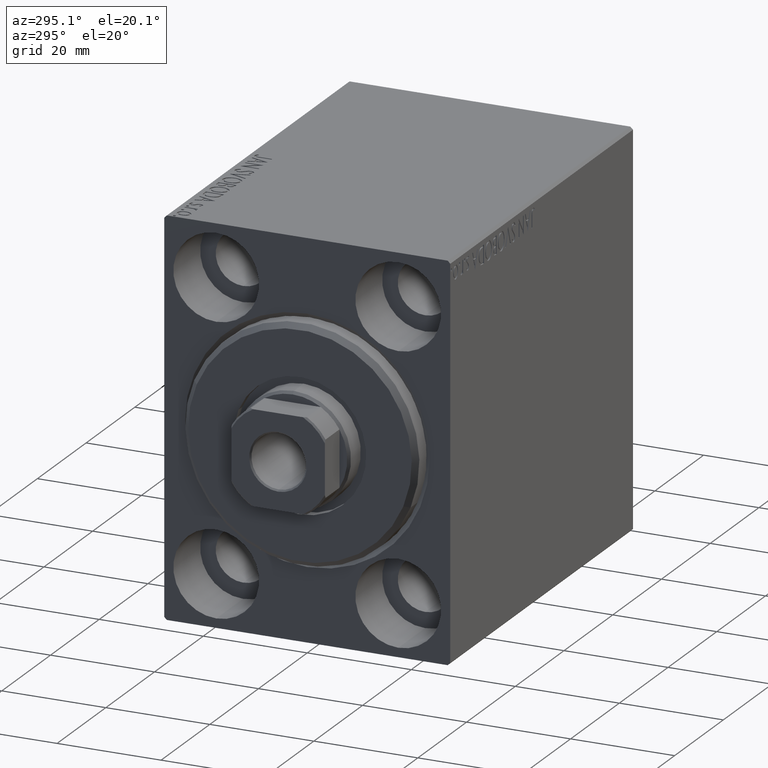
[diagram: clean part render]
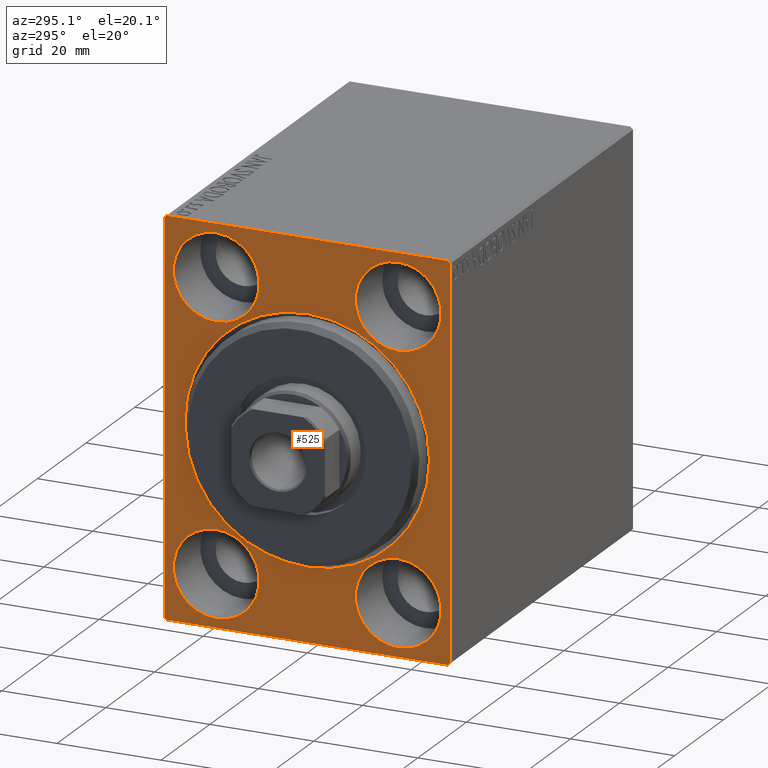
[diagram: same view with one face highlighted and labeled with its STEP entity id]
A machine part, auxiliary view. The second image highlights one B-rep face of the part: STEP entity #525.
In plain terms, the highlighted planar face has unit normal (1, 0, 0).
Its self-contained STEP definition (entity closure, byte-faithful):
#226 = EDGE_CURVE ( 'NONE', #27719, #16628, #3617, .T. ) ;
#371 = CIRCLE ( 'NONE', #6021, 8.250000000000000000 ) ;
#469 = FACE_BOUND ( 'NONE', #32838, .T. ) ;
#502 = VERTEX_POINT ( 'NONE', #37054 ) ;
#525 = ADVANCED_FACE ( 'NONE', ( #3784, #469, #40783, #10596, #37480, #7297 ), #34174, .F. ) ;
#1341 = ORIENTED_EDGE ( 'NONE', *, *, #6270, .F. ) ;
#1565 = CIRCLE ( 'NONE', #29724, 23.50000000000000355 ) ;
#1594 = DIRECTION ( 'NONE',  ( -1.000000000000000000, 0.000000000000000000, 0.000000000000000000 ) ) ;
#1922 = AXIS2_PLACEMENT_3D ( 'NONE', #38615, #1594, #15032 ) ;
#2478 = EDGE_CURVE ( 'NONE', #19018, #9089, #13507, .T. ) ;
#2744 = CARTESIAN_POINT ( 'NONE',  ( 0.000000000000000000, 17.50000000000000355, 27.49999999999999645 ) ) ;
#2854 = CARTESIAN_POINT ( 'NONE',  ( 0.000000000000000000, 0.000000000000000000, 0.000000000000000000 ) ) ;
#2866 = CARTESIAN_POINT ( 'NONE',  ( 0.000000000000000000, 17.49999999999999645, -35.75000000000000711 ) ) ;
#3264 = AXIS2_PLACEMENT_3D ( 'NONE', #21214, #35114, #28713 ) ;
#3306 = EDGE_CURVE ( 'NONE', #34982, #42730, #42655, .T. ) ;
#3389 = AXIS2_PLACEMENT_3D ( 'NONE', #2744, #35794, #5617 ) ;
#3617 = LINE ( 'NONE', #30490, #42589 ) ;
#3784 = FACE_BOUND ( 'NONE', #18952, .T. ) ;
#3997 = CARTESIAN_POINT ( 'NONE',  ( 0.000000000000000000, 0.000000000000000000, 0.000000000000000000 ) ) ;
#4283 = CARTESIAN_POINT ( 'NONE',  ( 0.000000000000000000, 0.000000000000000000, 0.000000000000000000 ) ) ;
#4296 = CARTESIAN_POINT ( 'NONE',  ( 0.000000000000000000, -17.50000000000000355, -27.50000000000000355 ) ) ;
#4326 = EDGE_CURVE ( 'NONE', #41367, #23080, #39298, .T. ) ;
#5316 = ORIENTED_EDGE ( 'NONE', *, *, #16441, .F. ) ;
#5431 = CARTESIAN_POINT ( 'NONE',  ( 0.000000000000000000, -17.49999999999999645, 27.49999999999999645 ) ) ;
#5617 = DIRECTION ( 'NONE',  ( 0.000000000000000000, 0.000000000000000000, 1.000000000000000000 ) ) ;
#5959 = CIRCLE ( 'NONE', #41820, 8.250000000000000000 ) ;
#5968 = VERTEX_POINT ( 'NONE', #9496 ) ;
#6021 = AXIS2_PLACEMENT_3D ( 'NONE', #29639, #12902, #16419 ) ;
#6270 = EDGE_CURVE ( 'NONE', #31675, #34531, #24395, .T. ) ;
#6658 = EDGE_CURVE ( 'NONE', #31455, #31411, #29383, .T. ) ;
#7144 = EDGE_CURVE ( 'NONE', #41367, #9089, #13843, .T. ) ;
#7297 = FACE_OUTER_BOUND ( 'NONE', #32642, .T. ) ;
#7347 = DIRECTION ( 'NONE',  ( -0.000000000000000000, 0.7071067811865474617, 0.7071067811865474617 ) ) ;
#7601 = DIRECTION ( 'NONE',  ( -1.000000000000000000, 0.000000000000000000, 0.000000000000000000 ) ) ;
#8891 = EDGE_CURVE ( 'NONE', #31411, #31455, #22362, .T. ) ;
#9089 = VERTEX_POINT ( 'NONE', #40075 ) ;
#9490 = EDGE_LOOP ( 'NONE', ( #12504, #21828 ) ) ;
#9496 = CARTESIAN_POINT ( 'NONE',  ( 0.000000000000000000, 2.877919977996280715E-15, -23.50000000000000355 ) ) ;
#9901 = VECTOR ( 'NONE', #12858, 1000.000000000000000 ) ;
#9936 = CIRCLE ( 'NONE', #40196, 23.50000000000000355 ) ;
#10001 = AXIS2_PLACEMENT_3D ( 'NONE', #28166, #13869, #27311 ) ;
#10066 = VERTEX_POINT ( 'NONE', #10159 ) ;
#10159 = CARTESIAN_POINT ( 'NONE',  ( 0.000000000000000000, -27.50000000000000355, -37.00000000000000000 ) ) ;
#10518 = CARTESIAN_POINT ( 'NONE',  ( 0.000000000000000000, -27.00000000000000355, -37.50000000000000000 ) ) ;
#10596 = FACE_BOUND ( 'NONE', #9490, .T. ) ;
#11388 = CIRCLE ( 'NONE', #19104, 8.249999999999992895 ) ;
#11650 = VECTOR ( 'NONE', #40380, 1000.000000000000000 ) ;
#11775 = CARTESIAN_POINT ( 'NONE',  ( 0.000000000000000000, -27.00000000000001776, 37.50000000000000000 ) ) ;
#12146 = CIRCLE ( 'NONE', #10001, 8.250000000000000000 ) ;
#12450 = CARTESIAN_POINT ( 'NONE',  ( 0.000000000000000000, 27.00000000000001066, 37.50000000000000711 ) ) ;
#12504 = ORIENTED_EDGE ( 'NONE', *, *, #8891, .F. ) ;
#12695 = LINE ( 'NONE', #16212, #32306 ) ;
#12858 = DIRECTION ( 'NONE',  ( 0.000000000000000000, 0.000000000000000000, -1.000000000000000000 ) ) ;
#12902 = DIRECTION ( 'NONE',  ( -1.000000000000000000, 0.000000000000000000, 0.000000000000000000 ) ) ;
#13032 = ORIENTED_EDGE ( 'NONE', *, *, #4326, .T. ) ;
#13155 = CARTESIAN_POINT ( 'NONE',  ( 0.000000000000000000, -27.50000000000000355, 37.00000000000001421 ) ) ;
#13213 = ORIENTED_EDGE ( 'NONE', *, *, #226, .T. ) ;
#13247 = EDGE_LOOP ( 'NONE', ( #26501, #36946 ) ) ;
#13507 = LINE ( 'NONE', #13712, #11650 ) ;
#13712 = CARTESIAN_POINT ( 'NONE',  ( 0.000000000000000000, 27.00000000000001066, 37.50000000000000711 ) ) ;
#13843 = LINE ( 'NONE', #33687, #26557 ) ;
#13869 = DIRECTION ( 'NONE',  ( -1.000000000000000000, 0.000000000000000000, 0.000000000000000000 ) ) ;
#13980 = ORIENTED_EDGE ( 'NONE', *, *, #20730, .F. ) ;
#14114 = DIRECTION ( 'NONE',  ( 0.000000000000000000, 0.000000000000000000, -1.000000000000000000 ) ) ;
#14218 = VERTEX_POINT ( 'NONE', #10518 ) ;
#14406 = DIRECTION ( 'NONE',  ( 0.000000000000000000, 0.000000000000000000, -1.000000000000000000 ) ) ;
#14652 = EDGE_LOOP ( 'NONE', ( #24338, #1341 ) ) ;
#15032 = DIRECTION ( 'NONE',  ( 0.000000000000000000, 0.000000000000000000, 1.000000000000000000 ) ) ;
#16060 = DIRECTION ( 'NONE',  ( 0.000000000000000000, 0.000000000000000000, -1.000000000000000000 ) ) ;
#16212 = CARTESIAN_POINT ( 'NONE',  ( 0.000000000000000000, 27.49999999999999645, 37.50000000000000711 ) ) ;
#16419 = DIRECTION ( 'NONE',  ( 0.000000000000000000, 0.000000000000000000, 1.000000000000000000 ) ) ;
#16441 = EDGE_CURVE ( 'NONE', #19018, #16628, #12695, .T. ) ;
#16628 = VERTEX_POINT ( 'NONE', #11775 ) ;
#16677 = AXIS2_PLACEMENT_3D ( 'NONE', #4296, #7601, #29494 ) ;
#18846 = DIRECTION ( 'NONE',  ( 0.000000000000000000, 0.000000000000000000, 1.000000000000000000 ) ) ;
#18851 = CARTESIAN_POINT ( 'NONE',  ( 0.000000000000000000, 17.50000000000000355, 19.25000000000000000 ) ) ;
#18952 = EDGE_LOOP ( 'NONE', ( #23052, #35274 ) ) ;
#19018 = VERTEX_POINT ( 'NONE', #12450 ) ;
#19104 = AXIS2_PLACEMENT_3D ( 'NONE', #5431, #42642, #18846 ) ;
#19390 = DIRECTION ( 'NONE',  ( -1.000000000000000000, 0.000000000000000000, 0.000000000000000000 ) ) ;
#19464 = CARTESIAN_POINT ( 'NONE',  ( 0.000000000000000000, 27.50000000000000355, -37.00000000000000000 ) ) ;
#20730 = EDGE_CURVE ( 'NONE', #14218, #23080, #22543, .T. ) ;
#20762 = CARTESIAN_POINT ( 'NONE',  ( 0.000000000000000000, 27.00000000000000355, -37.50000000000000000 ) ) ;
#21214 = CARTESIAN_POINT ( 'NONE',  ( 0.000000000000000000, -17.49999999999999645, 27.49999999999999645 ) ) ;
#21506 = EDGE_CURVE ( 'NONE', #27719, #10066, #22325, .T. ) ;
#21828 = ORIENTED_EDGE ( 'NONE', *, *, #6658, .F. ) ;
#22325 = LINE ( 'NONE', #35778, #9901 ) ;
#22362 = CIRCLE ( 'NONE', #3389, 8.249999999999992895 ) ;
#22380 = CARTESIAN_POINT ( 'NONE',  ( 0.000000000000000000, 17.50000000000000355, 35.74999999999999289 ) ) ;
#22543 = LINE ( 'NONE', #32680, #37327 ) ;
#22821 = DIRECTION ( 'NONE',  ( 0.000000000000000000, -1.000000000000000000, -1.261617073437677999E-16 ) ) ;
#23052 = ORIENTED_EDGE ( 'NONE', *, *, #25774, .T. ) ;
#23080 = VERTEX_POINT ( 'NONE', #20762 ) ;
#23577 = EDGE_CURVE ( 'NONE', #5968, #502, #9936, .T. ) ;
#24338 = ORIENTED_EDGE ( 'NONE', *, *, #41155, .F. ) ;
#24395 = CIRCLE ( 'NONE', #16677, 8.250000000000000000 ) ;
#24818 = EDGE_CURVE ( 'NONE', #42730, #34982, #11388, .T. ) ;
#25424 = DIRECTION ( 'NONE',  ( 1.000000000000000000, 0.000000000000000000, 0.000000000000000000 ) ) ;
#25532 = EDGE_CURVE ( 'NONE', #36934, #41396, #12146, .T. ) ;
#25774 = EDGE_CURVE ( 'NONE', #502, #5968, #1565, .T. ) ;
#26335 = LINE ( 'NONE', #29421, #30627 ) ;
#26501 = ORIENTED_EDGE ( 'NONE', *, *, #3306, .F. ) ;
#26557 = VECTOR ( 'NONE', #29946, 1000.000000000000000 ) ;
#27211 = VECTOR ( 'NONE', #35781, 1000.000000000000114 ) ;
#27311 = DIRECTION ( 'NONE',  ( 0.000000000000000000, 0.000000000000000000, 1.000000000000000000 ) ) ;
#27719 = VERTEX_POINT ( 'NONE', #13155 ) ;
#28166 = CARTESIAN_POINT ( 'NONE',  ( 0.000000000000000000, 17.49999999999999645, -27.50000000000000355 ) ) ;
#28265 = CARTESIAN_POINT ( 'NONE',  ( 0.000000000000000000, 17.49999999999999645, -19.25000000000000355 ) ) ;
#28713 = DIRECTION ( 'NONE',  ( 0.000000000000000000, 0.000000000000000000, 1.000000000000000000 ) ) ;
#29062 = DIRECTION ( 'NONE',  ( 1.000000000000000000, 0.000000000000000000, 0.000000000000000000 ) ) ;
#29383 = CIRCLE ( 'NONE', #1922, 8.249999999999992895 ) ;
#29421 = CARTESIAN_POINT ( 'NONE',  ( 0.000000000000000000, -27.00000000000000355, -37.50000000000000000 ) ) ;
#29494 = DIRECTION ( 'NONE',  ( 0.000000000000000000, 0.000000000000000000, 1.000000000000000000 ) ) ;
#29639 = CARTESIAN_POINT ( 'NONE',  ( 0.000000000000000000, -17.50000000000000355, -27.50000000000000355 ) ) ;
#29724 = AXIS2_PLACEMENT_3D ( 'NONE', #4283, #25424, #14406 ) ;
#29946 = DIRECTION ( 'NONE',  ( 0.000000000000000000, -9.251858538542970348E-17, 1.000000000000000000 ) ) ;
#30490 = CARTESIAN_POINT ( 'NONE',  ( 0.000000000000000000, -27.50000000000000355, 37.00000000000001421 ) ) ;
#30627 = VECTOR ( 'NONE', #32508, 1000.000000000000114 ) ;
#30866 = DIRECTION ( 'NONE',  ( 1.000000000000000000, 0.000000000000000000, 0.000000000000000000 ) ) ;
#31411 = VERTEX_POINT ( 'NONE', #22380 ) ;
#31455 = VERTEX_POINT ( 'NONE', #18851 ) ;
#31675 = VERTEX_POINT ( 'NONE', #34094 ) ;
#32024 = CARTESIAN_POINT ( 'NONE',  ( 0.000000000000000000, 27.50000000000000355, -37.00000000000000000 ) ) ;
#32306 = VECTOR ( 'NONE', #22821, 1000.000000000000000 ) ;
#32508 = DIRECTION ( 'NONE',  ( -0.000000000000000000, -0.7071067811865474617, 0.7071067811865474617 ) ) ;
#32642 = EDGE_LOOP ( 'NONE', ( #43427, #13213, #5316, #37158, #34277, #13032, #13980, #39755 ) ) ;
#32680 = CARTESIAN_POINT ( 'NONE',  ( 0.000000000000000000, -27.50000000000000355, -37.50000000000000000 ) ) ;
#32838 = EDGE_LOOP ( 'NONE', ( #39905, #42650 ) ) ;
#32841 = DIRECTION ( 'NONE',  ( 0.000000000000000000, 0.000000000000000000, 1.000000000000000000 ) ) ;
#33687 = CARTESIAN_POINT ( 'NONE',  ( 0.000000000000000000, 27.50000000000000355, -37.50000000000000000 ) ) ;
#34094 = CARTESIAN_POINT ( 'NONE',  ( 0.000000000000000000, -17.50000000000000355, -35.75000000000000711 ) ) ;
#34174 = PLANE ( 'NONE',  #39074 ) ;
#34277 = ORIENTED_EDGE ( 'NONE', *, *, #7144, .F. ) ;
#34531 = VERTEX_POINT ( 'NONE', #35282 ) ;
#34982 = VERTEX_POINT ( 'NONE', #37649 ) ;
#35114 = DIRECTION ( 'NONE',  ( -1.000000000000000000, 0.000000000000000000, 0.000000000000000000 ) ) ;
#35274 = ORIENTED_EDGE ( 'NONE', *, *, #23577, .T. ) ;
#35282 = CARTESIAN_POINT ( 'NONE',  ( 0.000000000000000000, -17.50000000000000355, -19.25000000000000355 ) ) ;
#35778 = CARTESIAN_POINT ( 'NONE',  ( 0.000000000000000000, -27.50000000000000355, 37.50000000000000000 ) ) ;
#35781 = DIRECTION ( 'NONE',  ( 0.000000000000000000, -0.7071067811865474617, -0.7071067811865474617 ) ) ;
#35794 = DIRECTION ( 'NONE',  ( -1.000000000000000000, 0.000000000000000000, 0.000000000000000000 ) ) ;
#35991 = DIRECTION ( 'NONE',  ( 0.000000000000000000, 1.000000000000000000, 0.000000000000000000 ) ) ;
#36366 = CARTESIAN_POINT ( 'NONE',  ( 0.000000000000000000, 17.49999999999999645, -27.50000000000000355 ) ) ;
#36934 = VERTEX_POINT ( 'NONE', #2866 ) ;
#36946 = ORIENTED_EDGE ( 'NONE', *, *, #24818, .F. ) ;
#37054 = CARTESIAN_POINT ( 'NONE',  ( 0.000000000000000000, 0.000000000000000000, 23.50000000000000355 ) ) ;
#37158 = ORIENTED_EDGE ( 'NONE', *, *, #2478, .T. ) ;
#37327 = VECTOR ( 'NONE', #35991, 1000.000000000000000 ) ;
#37480 = FACE_BOUND ( 'NONE', #14652, .T. ) ;
#37649 = CARTESIAN_POINT ( 'NONE',  ( 0.000000000000000000, -17.49999999999999645, 35.74999999999999289 ) ) ;
#38615 = CARTESIAN_POINT ( 'NONE',  ( 0.000000000000000000, 17.50000000000000355, 27.49999999999999645 ) ) ;
#38665 = EDGE_CURVE ( 'NONE', #41396, #36934, #5959, .T. ) ;
#39074 = AXIS2_PLACEMENT_3D ( 'NONE', #3997, #30866, #14114 ) ;
#39298 = LINE ( 'NONE', #19464, #27211 ) ;
#39755 = ORIENTED_EDGE ( 'NONE', *, *, #41172, .T. ) ;
#39905 = ORIENTED_EDGE ( 'NONE', *, *, #38665, .F. ) ;
#40075 = CARTESIAN_POINT ( 'NONE',  ( 0.000000000000000000, 27.49999999999999645, 37.00000000000001421 ) ) ;
#40196 = AXIS2_PLACEMENT_3D ( 'NONE', #2854, #29062, #16060 ) ;
#40355 = CARTESIAN_POINT ( 'NONE',  ( 0.000000000000000000, -17.49999999999999645, 19.25000000000000000 ) ) ;
#40380 = DIRECTION ( 'NONE',  ( -0.000000000000000000, 0.7071067811865426878, -0.7071067811865524577 ) ) ;
#40783 = FACE_BOUND ( 'NONE', #13247, .T. ) ;
#41155 = EDGE_CURVE ( 'NONE', #34531, #31675, #371, .T. ) ;
#41172 = EDGE_CURVE ( 'NONE', #14218, #10066, #26335, .T. ) ;
#41367 = VERTEX_POINT ( 'NONE', #32024 ) ;
#41396 = VERTEX_POINT ( 'NONE', #28265 ) ;
#41820 = AXIS2_PLACEMENT_3D ( 'NONE', #36366, #19390, #32841 ) ;
#42589 = VECTOR ( 'NONE', #7347, 1000.000000000000114 ) ;
#42642 = DIRECTION ( 'NONE',  ( -1.000000000000000000, 0.000000000000000000, 0.000000000000000000 ) ) ;
#42650 = ORIENTED_EDGE ( 'NONE', *, *, #25532, .F. ) ;
#42655 = CIRCLE ( 'NONE', #3264, 8.249999999999992895 ) ;
#42730 = VERTEX_POINT ( 'NONE', #40355 ) ;
#43427 = ORIENTED_EDGE ( 'NONE', *, *, #21506, .F. ) ;